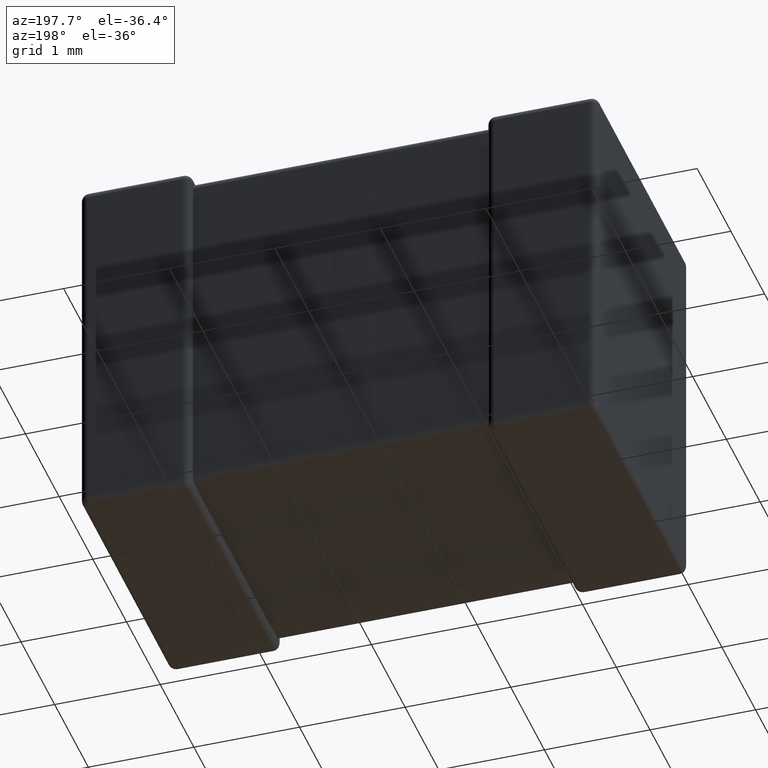
[diagram: clean part render]
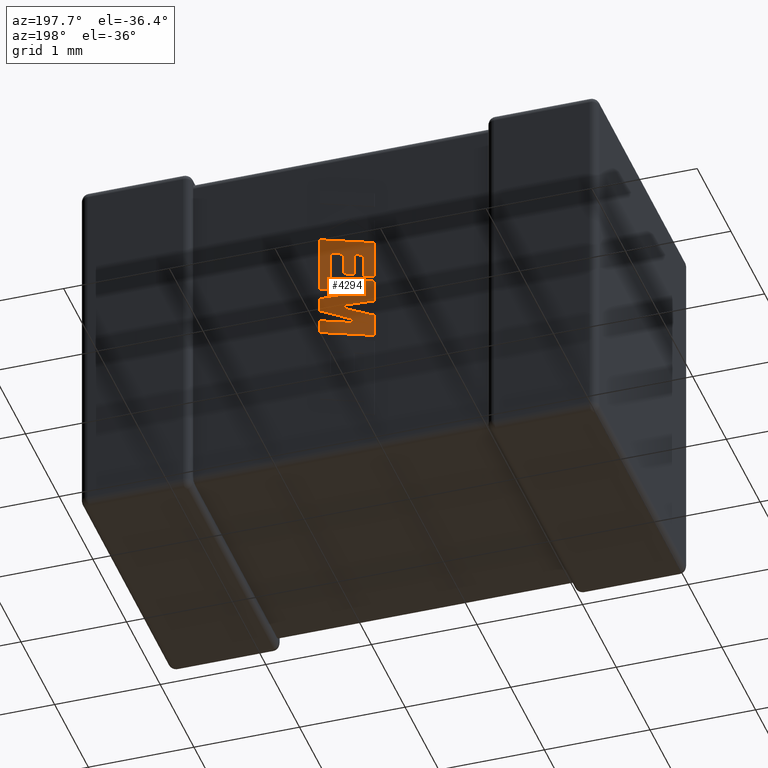
[diagram: same view with one face highlighted and labeled with its STEP entity id]
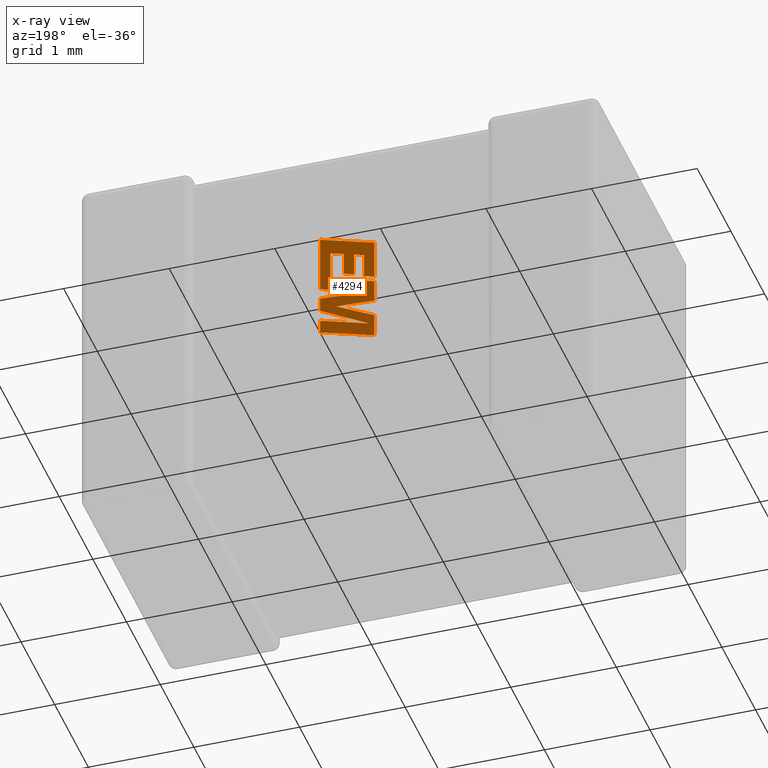
[diagram: x-ray of the same camera — body ghosted, the highlighted face saturated]
A machine part, auxiliary view. The second image highlights one B-rep face of the part: STEP entity #4294.
The next image is the same camera in x-ray: the body ghosted, the highlighted face saturated — about 0% of this face is hidden behind the body in this view.
In plain terms, the highlighted planar face has unit normal (0, -1, 0).
Its self-contained STEP definition (entity closure, byte-faithful):
#16 = LINE ( 'NONE', #2094, #3860 ) ;
#49 = DIRECTION ( 'NONE',  ( -0.9985542843760948362, 0.000000000000000000, -0.05375259206908060416 ) ) ;
#58 = ORIENTED_EDGE ( 'NONE', *, *, #3346, .T. ) ;
#93 = LINE ( 'NONE', #1511, #1237 ) ;
#102 = AXIS2_PLACEMENT_3D ( 'NONE', #679, #3477, #313 ) ;
#106 = EDGE_CURVE ( 'NONE', #4209, #1425, #2783, .T. ) ;
#173 = CARTESIAN_POINT ( 'NONE',  ( 2.131461455074790567, 2.632200000000000095, -1.569502186183909798 ) ) ;
#208 = VERTEX_POINT ( 'NONE', #2144 ) ;
#212 = CARTESIAN_POINT ( 'NONE',  ( 2.548108729707783127, 2.632200000000000095, -1.449742222008734815 ) ) ;
#243 = EDGE_CURVE ( 'NONE', #1115, #1455, #1893, .T. ) ;
#260 = VERTEX_POINT ( 'NONE', #3300 ) ;
#269 = DIRECTION ( 'NONE',  ( 0.000000000000000000, 0.000000000000000000, 1.000000000000000000 ) ) ;
#304 = EDGE_CURVE ( 'NONE', #3199, #1766, #93, .T. ) ;
#313 = DIRECTION ( 'NONE',  ( 0.000000000000000000, 0.000000000000000000, -1.000000000000000000 ) ) ;
#329 = ORIENTED_EDGE ( 'NONE', *, *, #1166, .T. ) ;
#334 = DIRECTION ( 'NONE',  ( -0.9610674221107078363, 0.000000000000000000, -0.2763139702539094134 ) ) ;
#351 = ORIENTED_EDGE ( 'NONE', *, *, #4535, .T. ) ;
#358 = CARTESIAN_POINT ( 'NONE',  ( 2.131461455074790567, 2.632200000000000095, -2.176825446628522176 ) ) ;
#425 = ORIENTED_EDGE ( 'NONE', *, *, #3379, .T. ) ;
#436 = CARTESIAN_POINT ( 'NONE',  ( 2.646000000000011010, 2.632200000000000095, -1.650160399609248874 ) ) ;
#438 = CARTESIAN_POINT ( 'NONE',  ( 2.420225839607044183, 2.632200000000000095, -1.200947889792602474 ) ) ;
#510 = LINE ( 'NONE', #436, #3184 ) ;
#591 = CARTESIAN_POINT ( 'NONE',  ( 2.646000000000011010, 2.632200000000000095, -1.898139623118868524 ) ) ;
#656 = LINE ( 'NONE', #3776, #4295 ) ;
#676 = CARTESIAN_POINT ( 'NONE',  ( 2.646000000000011010, 2.632200000000000095, -1.544308912229137354 ) ) ;
#679 = CARTESIAN_POINT ( 'NONE',  ( -0.8070152987309977544, 2.632200000000000095, 0.007919489514314502487 ) ) ;
#686 = CARTESIAN_POINT ( 'NONE',  ( 2.646000000000011010, 2.632200000000000095, -0.9899927494813206552 ) ) ;
#690 = LINE ( 'NONE', #4189, #3467 ) ;
#724 = LINE ( 'NONE', #2822, #2530 ) ;
#728 = LINE ( 'NONE', #676, #992 ) ;
#762 = VERTEX_POINT ( 'NONE', #2181 ) ;
#785 = DIRECTION ( 'NONE',  ( -0.9619530280415479195, 0.000000000000000000, -0.2732148821746301914 ) ) ;
#791 = ORIENTED_EDGE ( 'NONE', *, *, #243, .T. ) ;
#848 = VERTEX_POINT ( 'NONE', #2472 ) ;
#933 = LINE ( 'NONE', #1664, #1777 ) ;
#992 = VECTOR ( 'NONE', #2025, 1000.000000000000000 ) ;
#1005 = DIRECTION ( 'NONE',  ( 0.000000000000000000, 0.000000000000000000, 1.000000000000000000 ) ) ;
#1006 = VECTOR ( 'NONE', #1770, 1000.000000000000227 ) ;
#1009 = ORIENTED_EDGE ( 'NONE', *, *, #304, .T. ) ;
#1033 = CARTESIAN_POINT ( 'NONE',  ( 2.646000000000011010, 2.632200000000000095, -0.9899927494813206552 ) ) ;
#1041 = LINE ( 'NONE', #1723, #4119 ) ;
#1064 = ORIENTED_EDGE ( 'NONE', *, *, #3872, .T. ) ;
#1113 = DIRECTION ( 'NONE',  ( -0.9601763114327565019, 0.000000000000000000, -0.2793947940878393488 ) ) ;
#1115 = VERTEX_POINT ( 'NONE', #438 ) ;
#1127 = DIRECTION ( 'NONE',  ( 0.000000000000000000, 0.000000000000000000, -1.000000000000000000 ) ) ;
#1132 = CARTESIAN_POINT ( 'NONE',  ( 2.229401225116403484, 2.632200000000000095, -1.490363109686198895 ) ) ;
#1138 = LINE ( 'NONE', #1836, #2286 ) ;
#1163 = CARTESIAN_POINT ( 'NONE',  ( 2.646000000000011010, 2.632200000000000095, -1.898139623118868524 ) ) ;
#1166 = EDGE_CURVE ( 'NONE', #762, #4493, #16, .T. ) ;
#1181 = ORIENTED_EDGE ( 'NONE', *, *, #2298, .T. ) ;
#1235 = CARTESIAN_POINT ( 'NONE',  ( 2.187919857998916751, 2.632200000000000095, -1.675837106146426336 ) ) ;
#1237 = VECTOR ( 'NONE', #2559, 1000.000000000000114 ) ;
#1296 = VERTEX_POINT ( 'NONE', #1235 ) ;
#1337 = DIRECTION ( 'NONE',  ( -0.8843386665637650301, 0.000000000000000000, -0.4668459304955136502 ) ) ;
#1361 = VECTOR ( 'NONE', #3848, 1000.000000000000114 ) ;
#1376 = EDGE_CURVE ( 'NONE', #208, #2834, #656, .T. ) ;
#1404 = CARTESIAN_POINT ( 'NONE',  ( 2.131461455074790567, 2.632200000000000095, -1.138056229662791852 ) ) ;
#1422 = DIRECTION ( 'NONE',  ( 0.8958676361826827250, 0.000000000000000000, 0.4443210308329466618 ) ) ;
#1425 = VERTEX_POINT ( 'NONE', #2492 ) ;
#1426 = ORIENTED_EDGE ( 'NONE', *, *, #1791, .T. ) ;
#1431 = VECTOR ( 'NONE', #269, 1000.000000000000000 ) ;
#1451 = VERTEX_POINT ( 'NONE', #2115 ) ;
#1455 = VERTEX_POINT ( 'NONE', #2522 ) ;
#1461 = DIRECTION ( 'NONE',  ( 0.000000000000000000, 0.000000000000000000, -1.000000000000000000 ) ) ;
#1467 = CARTESIAN_POINT ( 'NONE',  ( 2.420225839607044183, 2.632200000000000095, -1.200947889792602474 ) ) ;
#1501 = VECTOR ( 'NONE', #334, 1000.000000000000227 ) ;
#1511 = CARTESIAN_POINT ( 'NONE',  ( 2.185713901613333565, 2.632200000000000095, -2.030318652395434409 ) ) ;
#1603 = CARTESIAN_POINT ( 'NONE',  ( 2.131461455074790567, 2.632200000000000095, -1.788625948747415650 ) ) ;
#1655 = CARTESIAN_POINT ( 'NONE',  ( 2.325105313117774131, 2.632200000000000095, -1.448931806827066682 ) ) ;
#1664 = CARTESIAN_POINT ( 'NONE',  ( 2.646000000000011010, 2.632200000000000095, -1.787331774155181074 ) ) ;
#1671 = EDGE_CURVE ( 'NONE', #2643, #762, #1041, .T. ) ;
#1683 = VECTOR ( 'NONE', #1127, 1000.000000000000000 ) ;
#1701 = LINE ( 'NONE', #1404, #4140 ) ;
#1723 = CARTESIAN_POINT ( 'NONE',  ( 2.325105313117774131, 2.632200000000000095, -1.228085846872917664 ) ) ;
#1759 = ORIENTED_EDGE ( 'NONE', *, *, #4087, .T. ) ;
#1766 = VERTEX_POINT ( 'NONE', #1163 ) ;
#1770 = DIRECTION ( 'NONE',  ( 0.9984327301130250243, 0.000000000000000000, 0.05596501978067342647 ) ) ;
#1774 = ORIENTED_EDGE ( 'NONE', *, *, #2676, .T. ) ;
#1777 = VECTOR ( 'NONE', #1337, 1000.000000000000114 ) ;
#1785 = LINE ( 'NONE', #4557, #3097 ) ;
#1791 = EDGE_CURVE ( 'NONE', #848, #1115, #1138, .T. ) ;
#1836 = CARTESIAN_POINT ( 'NONE',  ( 2.548108729707783127, 2.632200000000000095, -1.164510496710604137 ) ) ;
#1858 = ORIENTED_EDGE ( 'NONE', *, *, #2623, .T. ) ;
#1893 = LINE ( 'NONE', #1467, #1683 ) ;
#1942 = DIRECTION ( 'NONE',  ( 0.000000000000000000, 0.000000000000000000, -1.000000000000000000 ) ) ;
#2025 = DIRECTION ( 'NONE',  ( -0.9611638845408968512, 0.000000000000000000, -0.2759782365590690567 ) ) ;
#2033 = LINE ( 'NONE', #591, #4188 ) ;
#2074 = CARTESIAN_POINT ( 'NONE',  ( 2.185713901613333565, 2.632200000000000095, -2.030318652395434409 ) ) ;
#2081 = LINE ( 'NONE', #4243, #4133 ) ;
#2094 = CARTESIAN_POINT ( 'NONE',  ( 2.229401225116403484, 2.632200000000000095, -1.255934090619534649 ) ) ;
#2115 = CARTESIAN_POINT ( 'NONE',  ( 2.646000000000011010, 2.632200000000000095, -2.028891821030526010 ) ) ;
#2118 = ORIENTED_EDGE ( 'NONE', *, *, #4503, .T. ) ;
#2144 = CARTESIAN_POINT ( 'NONE',  ( 2.131461455074790567, 2.632200000000000095, -1.518180063271352687 ) ) ;
#2150 = VERTEX_POINT ( 'NONE', #173 ) ;
#2181 = CARTESIAN_POINT ( 'NONE',  ( 2.229401225116403484, 2.632200000000000095, -1.255934090619534649 ) ) ;
#2192 = ORIENTED_EDGE ( 'NONE', *, *, #1671, .T. ) ;
#2277 = VERTEX_POINT ( 'NONE', #212 ) ;
#2286 = VECTOR ( 'NONE', #4313, 1000.000000000000000 ) ;
#2289 = VECTOR ( 'NONE', #3721, 1000.000000000000000 ) ;
#2298 = EDGE_CURVE ( 'NONE', #3554, #3199, #933, .T. ) ;
#2304 = CARTESIAN_POINT ( 'NONE',  ( 2.131461455074790567, 2.632200000000000095, -1.788625948747415650 ) ) ;
#2314 = LINE ( 'NONE', #1655, #2289 ) ;
#2343 = LINE ( 'NONE', #2304, #1431 ) ;
#2401 = VECTOR ( 'NONE', #3456, 1000.000000000000000 ) ;
#2408 = LINE ( 'NONE', #3469, #1006 ) ;
#2459 = EDGE_CURVE ( 'NONE', #3149, #2583, #3466, .T. ) ;
#2472 = CARTESIAN_POINT ( 'NONE',  ( 2.548108729707783127, 2.632200000000000095, -1.164510496710604137 ) ) ;
#2492 = CARTESIAN_POINT ( 'NONE',  ( 2.646000000000011010, 2.632200000000000095, -1.544308912229137354 ) ) ;
#2498 = CARTESIAN_POINT ( 'NONE',  ( 2.325105313117774131, 2.632200000000000095, -1.448931806827066682 ) ) ;
#2500 = VECTOR ( 'NONE', #2792, 1000.000000000000000 ) ;
#2522 = CARTESIAN_POINT ( 'NONE',  ( 2.420225839607044183, 2.632200000000000095, -1.421762559585259877 ) ) ;
#2530 = VECTOR ( 'NONE', #3100, 1000.000000000000114 ) ;
#2559 = DIRECTION ( 'NONE',  ( 0.9611542233438712390, 0.000000000000000000, 0.2760118818968482213 ) ) ;
#2562 = ORIENTED_EDGE ( 'NONE', *, *, #4143, .T. ) ;
#2583 = VERTEX_POINT ( 'NONE', #4375 ) ;
#2623 = EDGE_CURVE ( 'NONE', #1766, #1451, #2033, .T. ) ;
#2643 = VERTEX_POINT ( 'NONE', #4466 ) ;
#2676 = EDGE_CURVE ( 'NONE', #4222, #2643, #2314, .T. ) ;
#2706 = EDGE_CURVE ( 'NONE', #2277, #848, #690, .T. ) ;
#2730 = LINE ( 'NONE', #3450, #1501 ) ;
#2736 = EDGE_CURVE ( 'NONE', #2583, #3995, #1785, .T. ) ;
#2783 = LINE ( 'NONE', #686, #2401 ) ;
#2792 = DIRECTION ( 'NONE',  ( 0.000000000000000000, 0.000000000000000000, 1.000000000000000000 ) ) ;
#2822 = CARTESIAN_POINT ( 'NONE',  ( 2.131461455074790567, 2.632200000000000095, -1.569502186183909798 ) ) ;
#2834 = VERTEX_POINT ( 'NONE', #3302 ) ;
#2970 = EDGE_CURVE ( 'NONE', #4493, #208, #3327, .T. ) ;
#3013 = VERTEX_POINT ( 'NONE', #1603 ) ;
#3070 = ORIENTED_EDGE ( 'NONE', *, *, #1376, .T. ) ;
#3091 = ORIENTED_EDGE ( 'NONE', *, *, #106, .T. ) ;
#3097 = VECTOR ( 'NONE', #1422, 1000.000000000000114 ) ;
#3100 = DIRECTION ( 'NONE',  ( 0.9610853065513847993, 0.000000000000000000, 0.2762517575166369421 ) ) ;
#3106 = FACE_OUTER_BOUND ( 'NONE', #4244, .T. ) ;
#3143 = CARTESIAN_POINT ( 'NONE',  ( 2.229401225116403484, 2.632200000000000095, -1.490363109686198895 ) ) ;
#3149 = VERTEX_POINT ( 'NONE', #358 ) ;
#3184 = VECTOR ( 'NONE', #3685, 1000.000000000000000 ) ;
#3199 = VERTEX_POINT ( 'NONE', #2074 ) ;
#3211 = ORIENTED_EDGE ( 'NONE', *, *, #2459, .T. ) ;
#3300 = CARTESIAN_POINT ( 'NONE',  ( 2.646000000000011010, 2.632200000000000095, -1.650160399609248874 ) ) ;
#3302 = CARTESIAN_POINT ( 'NONE',  ( 2.131461455074790567, 2.632200000000000095, -1.138056229662791852 ) ) ;
#3327 = LINE ( 'NONE', #1132, #3614 ) ;
#3346 = EDGE_CURVE ( 'NONE', #1451, #3149, #2730, .T. ) ;
#3353 = ORIENTED_EDGE ( 'NONE', *, *, #4509, .T. ) ;
#3379 = EDGE_CURVE ( 'NONE', #1425, #1296, #728, .T. ) ;
#3437 = CARTESIAN_POINT ( 'NONE',  ( 2.499054402578550160, 2.632200000000000095, -1.768838267633026984 ) ) ;
#3450 = CARTESIAN_POINT ( 'NONE',  ( 2.646000000000011010, 2.632200000000000095, -2.028891821030526010 ) ) ;
#3456 = DIRECTION ( 'NONE',  ( 0.000000000000000000, 0.000000000000000000, -1.000000000000000000 ) ) ;
#3466 = LINE ( 'NONE', #3887, #2500 ) ;
#3467 = VECTOR ( 'NONE', #3534, 1000.000000000000000 ) ;
#3469 = CARTESIAN_POINT ( 'NONE',  ( 2.187919857998916751, 2.632200000000000095, -1.675837106146426336 ) ) ;
#3477 = DIRECTION ( 'NONE',  ( 0.000000000000000000, -1.000000000000000000, 0.000000000000000000 ) ) ;
#3497 = DIRECTION ( 'NONE',  ( 0.9610029908221285888, 0.000000000000000000, 0.2765379750249931656 ) ) ;
#3517 = ORIENTED_EDGE ( 'NONE', *, *, #2706, .T. ) ;
#3534 = DIRECTION ( 'NONE',  ( 0.000000000000000000, 0.000000000000000000, 1.000000000000000000 ) ) ;
#3554 = VERTEX_POINT ( 'NONE', #4467 ) ;
#3614 = VECTOR ( 'NONE', #785, 999.9999999999998863 ) ;
#3642 = ORIENTED_EDGE ( 'NONE', *, *, #3671, .T. ) ;
#3671 = EDGE_CURVE ( 'NONE', #3995, #3013, #2081, .T. ) ;
#3685 = DIRECTION ( 'NONE',  ( 0.000000000000000000, 0.000000000000000000, -1.000000000000000000 ) ) ;
#3721 = DIRECTION ( 'NONE',  ( 0.000000000000000000, 0.000000000000000000, 1.000000000000000000 ) ) ;
#3776 = CARTESIAN_POINT ( 'NONE',  ( 2.131461455074790567, 2.632200000000000095, -1.518180063271352687 ) ) ;
#3826 = PLANE ( 'NONE',  #102 ) ;
#3848 = DIRECTION ( 'NONE',  ( -0.9615454294334447871, 0.000000000000000000, -0.2746459304917005517 ) ) ;
#3860 = VECTOR ( 'NONE', #1461, 1000.000000000000000 ) ;
#3872 = EDGE_CURVE ( 'NONE', #260, #3554, #510, .T. ) ;
#3887 = CARTESIAN_POINT ( 'NONE',  ( 2.131461455074790567, 2.632200000000000095, -2.176825446628522176 ) ) ;
#3995 = VERTEX_POINT ( 'NONE', #3437 ) ;
#4087 = EDGE_CURVE ( 'NONE', #3013, #2150, #2343, .T. ) ;
#4094 = LINE ( 'NONE', #4255, #1361 ) ;
#4119 = VECTOR ( 'NONE', #1113, 1000.000000000000227 ) ;
#4133 = VECTOR ( 'NONE', #49, 1000.000000000000114 ) ;
#4140 = VECTOR ( 'NONE', #3497, 1000.000000000000114 ) ;
#4143 = EDGE_CURVE ( 'NONE', #1455, #4222, #4094, .T. ) ;
#4188 = VECTOR ( 'NONE', #1942, 1000.000000000000000 ) ;
#4189 = CARTESIAN_POINT ( 'NONE',  ( 2.548108729707783127, 2.632200000000000095, -1.449742222008734815 ) ) ;
#4192 = ORIENTED_EDGE ( 'NONE', *, *, #2970, .T. ) ;
#4209 = VERTEX_POINT ( 'NONE', #1033 ) ;
#4222 = VERTEX_POINT ( 'NONE', #2498 ) ;
#4243 = CARTESIAN_POINT ( 'NONE',  ( 2.499054402578550160, 2.632200000000000095, -1.768838267633026984 ) ) ;
#4244 = EDGE_LOOP ( 'NONE', ( #3211, #4271, #3642, #1759, #3353, #3517, #1426, #791, #2562, #1774, #2192, #329, #4192, #3070, #2118, #3091, #425, #351, #1064, #1181, #1009, #1858, #58 ) ) ;
#4255 = CARTESIAN_POINT ( 'NONE',  ( 2.420225839607044183, 2.632200000000000095, -1.421762559585259877 ) ) ;
#4271 = ORIENTED_EDGE ( 'NONE', *, *, #2736, .T. ) ;
#4294 = ADVANCED_FACE ( 'NONE', ( #3106 ), #3826, .F. ) ;
#4295 = VECTOR ( 'NONE', #1005, 1000.000000000000000 ) ;
#4313 = DIRECTION ( 'NONE',  ( -0.9617234872620624708, 0.000000000000000000, -0.2740217765953968931 ) ) ;
#4375 = CARTESIAN_POINT ( 'NONE',  ( 2.131461455074790567, 2.632200000000000095, -1.951152340343301539 ) ) ;
#4466 = CARTESIAN_POINT ( 'NONE',  ( 2.325105313117774131, 2.632200000000000095, -1.228085846872917664 ) ) ;
#4467 = CARTESIAN_POINT ( 'NONE',  ( 2.646000000000011010, 2.632200000000000095, -1.787331774155181074 ) ) ;
#4493 = VERTEX_POINT ( 'NONE', #3143 ) ;
#4503 = EDGE_CURVE ( 'NONE', #2834, #4209, #1701, .T. ) ;
#4509 = EDGE_CURVE ( 'NONE', #2150, #2277, #724, .T. ) ;
#4535 = EDGE_CURVE ( 'NONE', #1296, #260, #2408, .T. ) ;
#4557 = CARTESIAN_POINT ( 'NONE',  ( 2.131461455074790567, 2.632200000000000095, -1.951152340343301539 ) ) ;